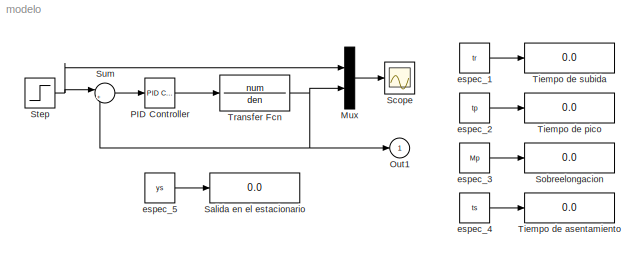
MODEL modelo
KIND model
CONFIG AbsTol = auto
CONFIG FixedStep = auto
CONFIG MaxStep = auto
CONFIG MinStep = auto
CONFIG RelTol = 1e-3
CONFIG Solver = ode45
CONFIG SolverMode = Auto
CONFIG StartTime = 0.0
CONFIG StopTime = 100
BLOCK [Mux] Mux
  DisplayOption = bar
  Inputs = 2
  Ports = [2, 1]
BLOCK [Outport] Out1
BLOCK [Reference] PID Controller  REF=simulink_extras/Additional\nLinear/PID Controller
  D = Kd
  I = Ki
  P = Kp
  Ports = [1, 1]
  SourceBlock = simulink_extras/Additional\nLinear/PID Controller
  SourceType = PID Controller
BLOCK [Display] Salida en el estacionario
  Decimation = 1
  Ports = [1]
BLOCK [Scope] Scope
  DataFormat = StructureWithTime
  LimitDataPoints = off
  NumInputPorts = 1
  Ports = [1]
  TimeRange = 100
  YMax = 1.4
  YMin = 0
  ZoomMode = yonly
BLOCK [Display] Sobreelongacion
  Decimation = 1
  Ports = [1]
BLOCK [Step] Step
  SampleTime = 0.01
  Time = 0
BLOCK [Sum] Sum
  IconShape = round
  Inputs = |+-
  Ports = [2, 1]
BLOCK [Display] Tiempo de asentamiento
  Decimation = 1
  Ports = [1]
BLOCK [Display] Tiempo de pico
  Decimation = 1
  Ports = [1]
BLOCK [Display] Tiempo de subida
  Decimation = 1
  Ports = [1]
BLOCK [TransferFcn] Transfer Fcn
  Denominator = den
  Numerator = num
BLOCK [Constant] espec_1
  Value = tr
BLOCK [Constant] espec_2
  Value = tp
BLOCK [Constant] espec_3
  Value = Mp
BLOCK [Constant] espec_4
  Value = ts
BLOCK [Constant] espec_5
  Value = ys
LINE Mux:1 -> Scope:1
LINE PID Controller:1 -> Transfer Fcn:1
NET Step:1 -> Mux:1, Sum:1
LINE Sum:1 -> PID Controller:1
NET Transfer Fcn:1 -> Mux:2, Out1:1, Sum:2
LINE espec_1:1 -> Tiempo de subida:1
LINE espec_2:1 -> Tiempo de pico:1
LINE espec_3:1 -> Sobreelongacion:1
LINE espec_4:1 -> Tiempo de asentamiento:1
LINE espec_5:1 -> Salida en el estacionario:1
note: NET lines group one-source signal fan-out (src -> all destinations, sorted); 1:1 wires keep LINE
